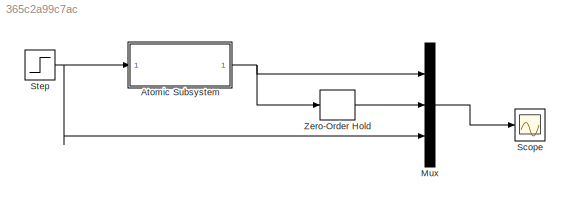
MODEL slx_365c2a99c7ac
KIND model
CONFIG AbsTol = auto
CONFIG EnableMultiTasking = off
CONFIG FixedStep = auto
CONFIG MaxStep = auto
CONFIG MinStep = auto
CONFIG RelTol = 1e-3
CONFIG SampleTimeConstraint = Unconstrained
CONFIG Solver = VariableStepAuto
CONFIG SolverName = VariableStepAuto
CONFIG StartTime = 0.0
CONFIG StopTime = 25
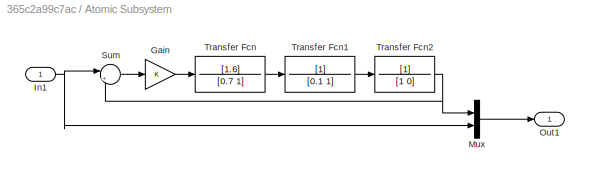
BLOCK [SubSystem] Atomic Subsystem
  Ports = [1, 1]
  RequestExecContextInheritance = off
  TreatAsAtomicUnit = on
BLOCK [Gain] Atomic Subsystem/Gain
  OutDataTypeStr = Inherit: Inherit via internal rule
  ParamDataTypeStr = Inherit: Inherit via internal rule
  SaturateOnIntegerOverflow = off
BLOCK [Inport] Atomic Subsystem/In1
  IconDisplay = Port number
BLOCK [Mux] Atomic Subsystem/Mux
  DisplayOption = bar
  Inputs = 2
  Ports = [2, 1]
BLOCK [Outport] Atomic Subsystem/Out1
  IconDisplay = Port number
BLOCK [Sum] Atomic Subsystem/Sum
  IconShape = round
  InputSameDT = off
  Inputs = |+-
  OutDataTypeStr = Inherit: Inherit via internal rule
  Ports = [2, 1]
  SaturateOnIntegerOverflow = off
BLOCK [TransferFcn] Atomic Subsystem/Transfer Fcn
  Denominator = [0.7 1]
  Numerator = [1.6]
BLOCK [TransferFcn] Atomic Subsystem/Transfer Fcn1
  Denominator = [0.1 1]
BLOCK [TransferFcn] Atomic Subsystem/Transfer Fcn2
  Denominator = [1 0]
BLOCK [Mux] Mux
  DisplayOption = bar
  Inputs = 3
  Ports = [3, 1]
BLOCK [Scope] Scope
  Floating = off
  NumInputPorts = 1
  Ports = [1]
  ScopeSpecificationString = Simulink.scopes.TimeScopeBlockCfg('CurrentConfiguration', extmgr.ConfigurationSet(extmgr.Configuration('Core','General UI',true),extmgr.Configuration('Core','Source UI',true),extmgr.Configuration('Sources','WiredSimulink',true),extmgr.Configuration('Visuals','Time Domain',true),extmgr.Configuration('Tools','Plot Navigation',true),extmgr.Configuration('Tools','Measurements',true)),'Version','2018b'...<+1ch>
BLOCK [Step] Step
  Before = 1
  SampleTime = 0.5
BLOCK [ZeroOrderHold] Zero-Order Hold
  SampleTime = -1
LINE Atomic Subsystem/Gain:1 -> Atomic Subsystem/Transfer Fcn:1
NET Atomic Subsystem/In1:1 -> Atomic Subsystem/Mux:2, Atomic Subsystem/Sum:1
LINE Atomic Subsystem/Mux:1 -> Atomic Subsystem/Out1:1
LINE Atomic Subsystem/Sum:1 -> Atomic Subsystem/Gain:1
LINE Atomic Subsystem/Transfer Fcn1:1 -> Atomic Subsystem/Transfer Fcn2:1
NET Atomic Subsystem/Transfer Fcn2:1 -> Atomic Subsystem/Mux:1, Atomic Subsystem/Sum:2
LINE Atomic Subsystem/Transfer Fcn:1 -> Atomic Subsystem/Transfer Fcn1:1
NET Atomic Subsystem:1 -> Mux:1, Zero-Order Hold:1
LINE Mux:1 -> Scope:1
NET Step:1 -> Atomic Subsystem:1, Mux:3
LINE Zero-Order Hold:1 -> Mux:2
note: NET lines group one-source signal fan-out (src -> all destinations, sorted); 1:1 wires keep LINE
